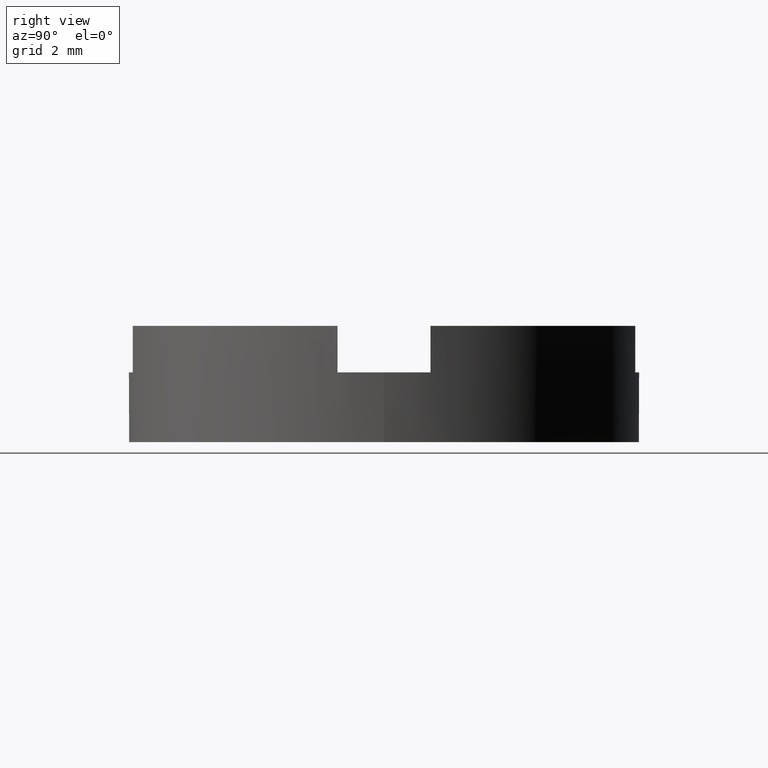
[diagram: clean part render]
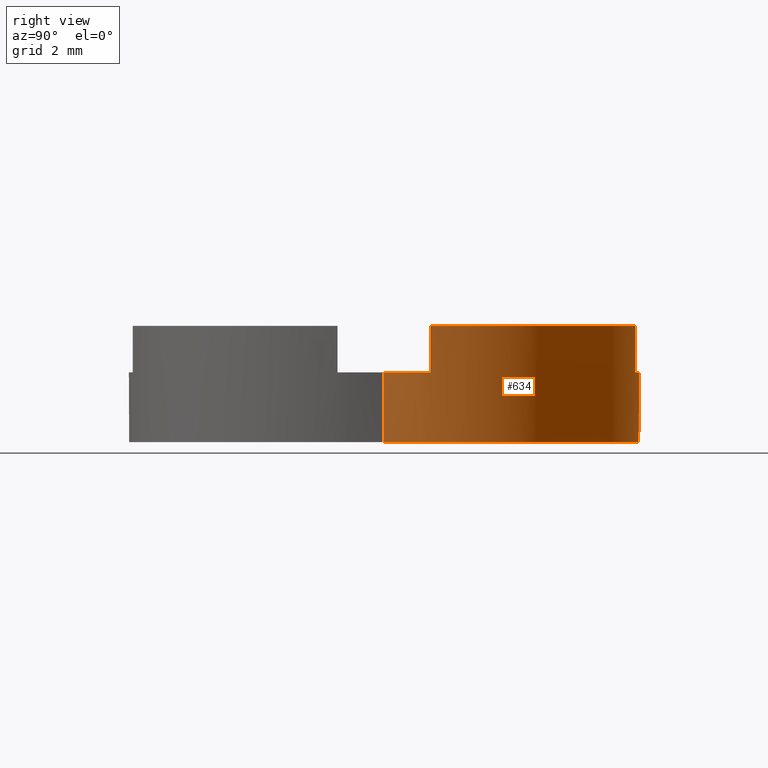
[diagram: same view with one face highlighted and labeled with its STEP entity id]
A machine part, right view. The second image highlights one B-rep face of the part: STEP entity #634.
In plain terms, the highlighted cylindrical surface (partial cylindrical patch) has radius 5.5 mm, axis along (-0, -0, -1).
Its self-contained STEP definition (entity closure, byte-faithful):
#1 = LINE ( 'NONE', #520, #499 ) ;
#6 = ORIENTED_EDGE ( 'NONE', *, *, #473, .F. ) ;
#27 = VERTEX_POINT ( 'NONE', #116 ) ;
#37 = VECTOR ( 'NONE', #631, 1000.000000000000000 ) ;
#44 = EDGE_CURVE ( 'NONE', #50, #234, #285, .T. ) ;
#46 = VECTOR ( 'NONE', #47, 1000.000000000000000 ) ;
#47 = DIRECTION ( 'NONE',  ( -0.000000000000000000, -0.000000000000000000, -1.000000000000000000 ) ) ;
#48 = EDGE_CURVE ( 'NONE', #531, #481, #549, .T. ) ;
#50 = VERTEX_POINT ( 'NONE', #123 ) ;
#60 = EDGE_CURVE ( 'NONE', #481, #164, #321, .T. ) ;
#70 = CARTESIAN_POINT ( 'NONE',  ( -5.500000000000000000, 0.000000000000000000, 2.500000000000000000 ) ) ;
#87 = DIRECTION ( 'NONE',  ( 1.000000000000000000, 0.000000000000000000, 0.000000000000000000 ) ) ;
#90 = AXIS2_PLACEMENT_3D ( 'NONE', #159, #327, #266 ) ;
#92 = CARTESIAN_POINT ( 'NONE',  ( 5.500000000000000000, 6.735557395310442023E-16, 2.500000000000000000 ) ) ;
#116 = CARTESIAN_POINT ( 'NONE',  ( -5.500000000000000000, 0.000000000000000000, 1.500000000000000000 ) ) ;
#123 = CARTESIAN_POINT ( 'NONE',  ( 5.500000000000000000, 6.735557395310442023E-16, 1.500000000000000000 ) ) ;
#128 = CARTESIAN_POINT ( 'NONE',  ( 0.000000000000000000, 0.000000000000000000, 2.500000000000000000 ) ) ;
#132 = DIRECTION ( 'NONE',  ( -0.000000000000000000, -0.000000000000000000, 1.000000000000000000 ) ) ;
#136 = CARTESIAN_POINT ( 'NONE',  ( 0.000000000000000000, 0.000000000000000000, 2.500000000000000000 ) ) ;
#138 = CARTESIAN_POINT ( 'NONE',  ( 0.000000000000000000, 0.000000000000000000, 2.500000000000000000 ) ) ;
#139 = CARTESIAN_POINT ( 'NONE',  ( 5.408326913195987018, 0.9999999999999831246, 1.500000000000000000 ) ) ;
#140 = CARTESIAN_POINT ( 'NONE',  ( 5.500000000000000000, 6.735557395310442023E-16, 0.000000000000000000 ) ) ;
#155 = ORIENTED_EDGE ( 'NONE', *, *, #397, .F. ) ;
#156 = ORIENTED_EDGE ( 'NONE', *, *, #243, .F. ) ;
#159 = CARTESIAN_POINT ( 'NONE',  ( 0.000000000000000000, 0.000000000000000000, 1.500000000000000000 ) ) ;
#164 = VERTEX_POINT ( 'NONE', #345 ) ;
#177 = VECTOR ( 'NONE', #316, 1000.000000000000000 ) ;
#180 = EDGE_LOOP ( 'NONE', ( #712, #409, #683, #156, #6, #707, #532, #444, #260, #251, #505, #155 ) ) ;
#186 = DIRECTION ( 'NONE',  ( -0.000000000000000000, -0.000000000000000000, 1.000000000000000000 ) ) ;
#195 = EDGE_CURVE ( 'NONE', #531, #560, #295, .T. ) ;
#196 = DIRECTION ( 'NONE',  ( 0.000000000000000000, 0.000000000000000000, 1.000000000000000000 ) ) ;
#224 = CARTESIAN_POINT ( 'NONE',  ( -1.000000000000001332, 5.408326913195983465, 1.500000000000000000 ) ) ;
#225 = CARTESIAN_POINT ( 'NONE',  ( -5.408326913195980801, 1.000000000000018652, 1.500000000000000000 ) ) ;
#234 = VERTEX_POINT ( 'NONE', #139 ) ;
#243 = EDGE_CURVE ( 'NONE', #27, #780, #568, .T. ) ;
#249 = CIRCLE ( 'NONE', #365, 5.500000000000000000 ) ;
#250 = VERTEX_POINT ( 'NONE', #640 ) ;
#251 = ORIENTED_EDGE ( 'NONE', *, *, #195, .T. ) ;
#252 = CIRCLE ( 'NONE', #565, 5.500000000000000000 ) ;
#254 = CIRCLE ( 'NONE', #335, 5.500000000000000000 ) ;
#260 = ORIENTED_EDGE ( 'NONE', *, *, #48, .F. ) ;
#266 = DIRECTION ( 'NONE',  ( 1.000000000000000000, 0.000000000000000000, 0.000000000000000000 ) ) ;
#281 = EDGE_CURVE ( 'NONE', #50, #519, #580, .T. ) ;
#285 = CIRCLE ( 'NONE', #90, 5.500000000000000000 ) ;
#287 = DIRECTION ( 'NONE',  ( -0.000000000000000000, -0.000000000000000000, -1.000000000000000000 ) ) ;
#295 = LINE ( 'NONE', #678, #37 ) ;
#297 = CARTESIAN_POINT ( 'NONE',  ( 0.9999999999999986677, 5.408326913195983465, 1.500000000000000000 ) ) ;
#316 = DIRECTION ( 'NONE',  ( -0.000000000000000000, -0.000000000000000000, 1.000000000000000000 ) ) ;
#321 = LINE ( 'NONE', #370, #566 ) ;
#327 = DIRECTION ( 'NONE',  ( -0.000000000000000000, 0.000000000000000000, 1.000000000000000000 ) ) ;
#334 = CARTESIAN_POINT ( 'NONE',  ( 0.000000000000000000, 0.000000000000000000, 1.500000000000000000 ) ) ;
#335 = AXIS2_PLACEMENT_3D ( 'NONE', #136, #638, #87 ) ;
#337 = CARTESIAN_POINT ( 'NONE',  ( 0.000000000000000000, 0.000000000000000000, 0.000000000000000000 ) ) ;
#345 = CARTESIAN_POINT ( 'NONE',  ( -1.000000000000001332, 5.408326913195983465, 2.500000000000000000 ) ) ;
#365 = AXIS2_PLACEMENT_3D ( 'NONE', #138, #379, #620 ) ;
#369 = DIRECTION ( 'NONE',  ( -0.000000000000000000, 0.000000000000000000, 1.000000000000000000 ) ) ;
#370 = CARTESIAN_POINT ( 'NONE',  ( -1.000000000000001332, 5.408326913195983465, 1.500000000000000000 ) ) ;
#379 = DIRECTION ( 'NONE',  ( 0.000000000000000000, 0.000000000000000000, 1.000000000000000000 ) ) ;
#397 = EDGE_CURVE ( 'NONE', #234, #250, #1, .T. ) ;
#409 = ORIENTED_EDGE ( 'NONE', *, *, #281, .T. ) ;
#429 = EDGE_CURVE ( 'NONE', #519, #780, #521, .T. ) ;
#444 = ORIENTED_EDGE ( 'NONE', *, *, #60, .F. ) ;
#447 = LINE ( 'NONE', #225, #177 ) ;
#448 = EDGE_CURVE ( 'NONE', #164, #544, #254, .T. ) ;
#449 = CARTESIAN_POINT ( 'NONE',  ( -5.408326913195980801, 1.000000000000018652, 1.500000000000000000 ) ) ;
#473 = EDGE_CURVE ( 'NONE', #594, #27, #252, .T. ) ;
#481 = VERTEX_POINT ( 'NONE', #224 ) ;
#487 = DIRECTION ( 'NONE',  ( 1.000000000000000000, 0.000000000000000000, 0.000000000000000000 ) ) ;
#491 = DIRECTION ( 'NONE',  ( -1.000000000000000000, 0.000000000000000000, 0.000000000000000000 ) ) ;
#499 = VECTOR ( 'NONE', #132, 1000.000000000000000 ) ;
#505 = ORIENTED_EDGE ( 'NONE', *, *, #540, .F. ) ;
#519 = VERTEX_POINT ( 'NONE', #140 ) ;
#520 = CARTESIAN_POINT ( 'NONE',  ( 5.408326913195987018, 0.9999999999999831246, 1.500000000000000000 ) ) ;
#521 = CIRCLE ( 'NONE', #716, 5.500000000000000000 ) ;
#531 = VERTEX_POINT ( 'NONE', #297 ) ;
#532 = ORIENTED_EDGE ( 'NONE', *, *, #448, .F. ) ;
#540 = EDGE_CURVE ( 'NONE', #250, #560, #249, .T. ) ;
#544 = VERTEX_POINT ( 'NONE', #677 ) ;
#549 = CIRCLE ( 'NONE', #762, 5.500000000000000000 ) ;
#553 = AXIS2_PLACEMENT_3D ( 'NONE', #128, #287, #491 ) ;
#560 = VERTEX_POINT ( 'NONE', #589 ) ;
#565 = AXIS2_PLACEMENT_3D ( 'NONE', #588, #579, #618 ) ;
#566 = VECTOR ( 'NONE', #186, 1000.000000000000000 ) ;
#568 = LINE ( 'NONE', #70, #46 ) ;
#577 = VECTOR ( 'NONE', #746, 1000.000000000000000 ) ;
#579 = DIRECTION ( 'NONE',  ( -0.000000000000000000, 0.000000000000000000, 1.000000000000000000 ) ) ;
#580 = LINE ( 'NONE', #92, #577 ) ;
#588 = CARTESIAN_POINT ( 'NONE',  ( 0.000000000000000000, 0.000000000000000000, 1.500000000000000000 ) ) ;
#589 = CARTESIAN_POINT ( 'NONE',  ( 0.9999999999999986677, 5.408326913195983465, 2.500000000000000000 ) ) ;
#594 = VERTEX_POINT ( 'NONE', #449 ) ;
#599 = DIRECTION ( 'NONE',  ( 1.000000000000000000, 0.000000000000000000, 0.000000000000000000 ) ) ;
#618 = DIRECTION ( 'NONE',  ( 1.000000000000000000, 0.000000000000000000, 0.000000000000000000 ) ) ;
#620 = DIRECTION ( 'NONE',  ( 1.000000000000000000, 0.000000000000000000, 0.000000000000000000 ) ) ;
#631 = DIRECTION ( 'NONE',  ( -0.000000000000000000, -0.000000000000000000, 1.000000000000000000 ) ) ;
#634 = ADVANCED_FACE ( 'NONE', ( #727 ), #708, .T. ) ;
#638 = DIRECTION ( 'NONE',  ( 0.000000000000000000, 0.000000000000000000, 1.000000000000000000 ) ) ;
#640 = CARTESIAN_POINT ( 'NONE',  ( 5.408326913195987018, 0.9999999999999831246, 2.500000000000000000 ) ) ;
#674 = EDGE_CURVE ( 'NONE', #594, #544, #447, .T. ) ;
#677 = CARTESIAN_POINT ( 'NONE',  ( -5.408326913195980801, 1.000000000000018652, 2.500000000000000000 ) ) ;
#678 = CARTESIAN_POINT ( 'NONE',  ( 0.9999999999999986677, 5.408326913195983465, 1.500000000000000000 ) ) ;
#683 = ORIENTED_EDGE ( 'NONE', *, *, #429, .T. ) ;
#694 = CARTESIAN_POINT ( 'NONE',  ( -5.500000000000000000, 0.000000000000000000, 0.000000000000000000 ) ) ;
#707 = ORIENTED_EDGE ( 'NONE', *, *, #674, .T. ) ;
#708 = CYLINDRICAL_SURFACE ( 'NONE', #553, 5.500000000000000000 ) ;
#712 = ORIENTED_EDGE ( 'NONE', *, *, #44, .F. ) ;
#716 = AXIS2_PLACEMENT_3D ( 'NONE', #337, #196, #599 ) ;
#727 = FACE_OUTER_BOUND ( 'NONE', #180, .T. ) ;
#746 = DIRECTION ( 'NONE',  ( -0.000000000000000000, -0.000000000000000000, -1.000000000000000000 ) ) ;
#762 = AXIS2_PLACEMENT_3D ( 'NONE', #334, #369, #487 ) ;
#780 = VERTEX_POINT ( 'NONE', #694 ) ;